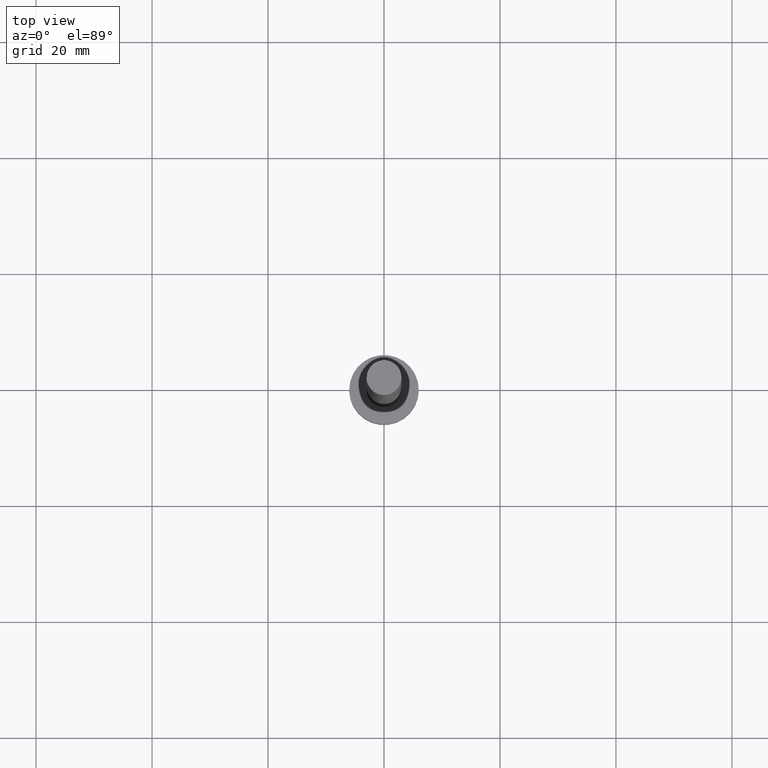
[diagram: clean part render]
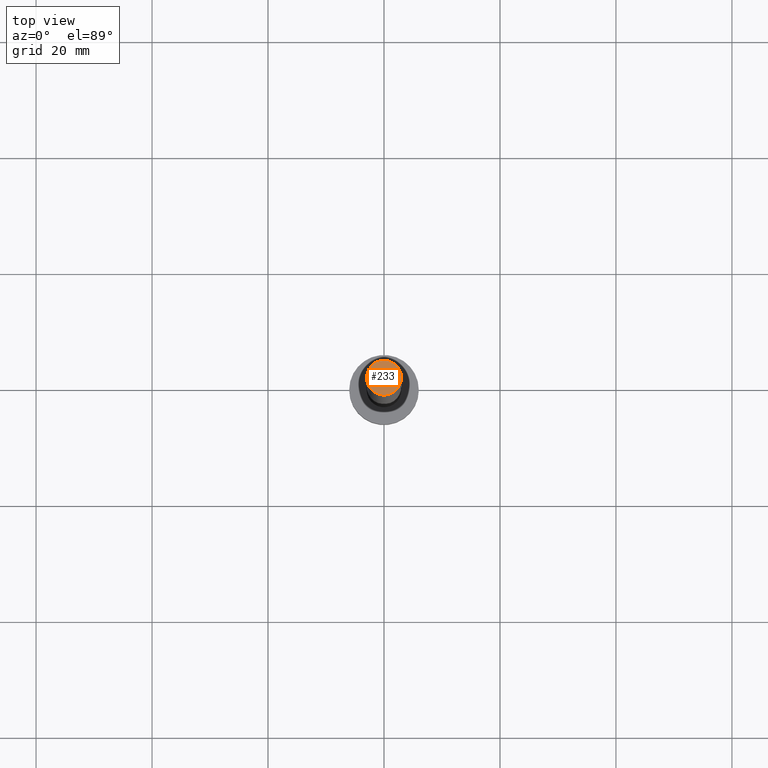
[diagram: same view with one face highlighted and labeled with its STEP entity id]
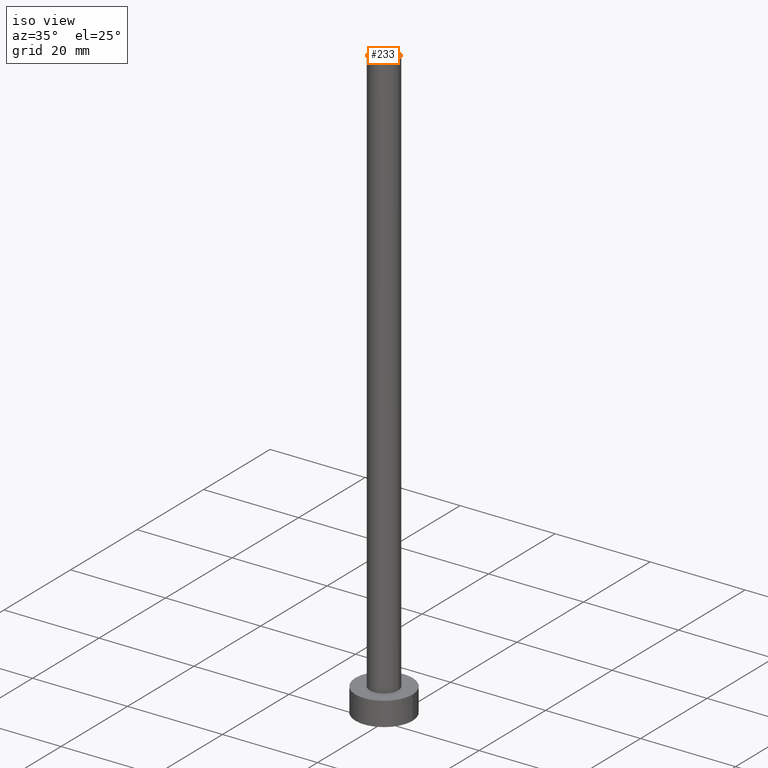
[diagram: same view with one face highlighted and labeled with its STEP entity id]
A machine part, top view. The second image highlights one B-rep face of the part: STEP entity #233.
A second angle (iso view) of the same face is appended — the face is thin or edge-on in the first view.
In plain terms, the highlighted planar face has unit normal (0, 0, 1).
Its self-contained STEP definition (entity closure, byte-faithful):
#23 = AXIS2_PLACEMENT_3D ( 'NONE', #162, #63, #203 ) ;
#42 = DIRECTION ( 'NONE',  ( 0.000000000000000000, 0.000000000000000000, 1.000000000000000000 ) ) ;
#47 = CARTESIAN_POINT ( 'NONE',  ( 0.000000000000000000, 0.000000000000000000, 125.0000000000000000 ) ) ;
#55 = ORIENTED_EDGE ( 'NONE', *, *, #67, .T. ) ;
#61 = CARTESIAN_POINT ( 'NONE',  ( -3.000000000000000444, 0.000000000000000000, 125.0000000000000000 ) ) ;
#63 = DIRECTION ( 'NONE',  ( 0.000000000000000000, 0.000000000000000000, 1.000000000000000000 ) ) ;
#67 = EDGE_CURVE ( 'NONE', #107, #89, #92, .T. ) ;
#76 = CARTESIAN_POINT ( 'NONE',  ( 3.000000000000000444, 3.673940397442060361E-16, 125.0000000000000000 ) ) ;
#89 = VERTEX_POINT ( 'NONE', #76 ) ;
#92 = CIRCLE ( 'NONE', #104, 3.000000000000000444 ) ;
#93 = CIRCLE ( 'NONE', #140, 3.000000000000000444 ) ;
#104 = AXIS2_PLACEMENT_3D ( 'NONE', #115, #42, #109 ) ;
#107 = VERTEX_POINT ( 'NONE', #61 ) ;
#108 = EDGE_LOOP ( 'NONE', ( #55, #182 ) ) ;
#109 = DIRECTION ( 'NONE',  ( 1.000000000000000000, 0.000000000000000000, 0.000000000000000000 ) ) ;
#115 = CARTESIAN_POINT ( 'NONE',  ( 0.000000000000000000, 0.000000000000000000, 125.0000000000000000 ) ) ;
#118 = DIRECTION ( 'NONE',  ( 0.000000000000000000, 0.000000000000000000, 1.000000000000000000 ) ) ;
#119 = FACE_OUTER_BOUND ( 'NONE', #108, .T. ) ;
#140 = AXIS2_PLACEMENT_3D ( 'NONE', #47, #118, #201 ) ;
#162 = CARTESIAN_POINT ( 'NONE',  ( 0.000000000000000000, 0.000000000000000000, 125.0000000000000000 ) ) ;
#182 = ORIENTED_EDGE ( 'NONE', *, *, #210, .T. ) ;
#201 = DIRECTION ( 'NONE',  ( 1.000000000000000000, 0.000000000000000000, 0.000000000000000000 ) ) ;
#203 = DIRECTION ( 'NONE',  ( 1.000000000000000000, 0.000000000000000000, -0.000000000000000000 ) ) ;
#210 = EDGE_CURVE ( 'NONE', #89, #107, #93, .T. ) ;
#233 = ADVANCED_FACE ( 'NONE', ( #119 ), #241, .T. ) ;
#241 = PLANE ( 'NONE',  #23 ) ;